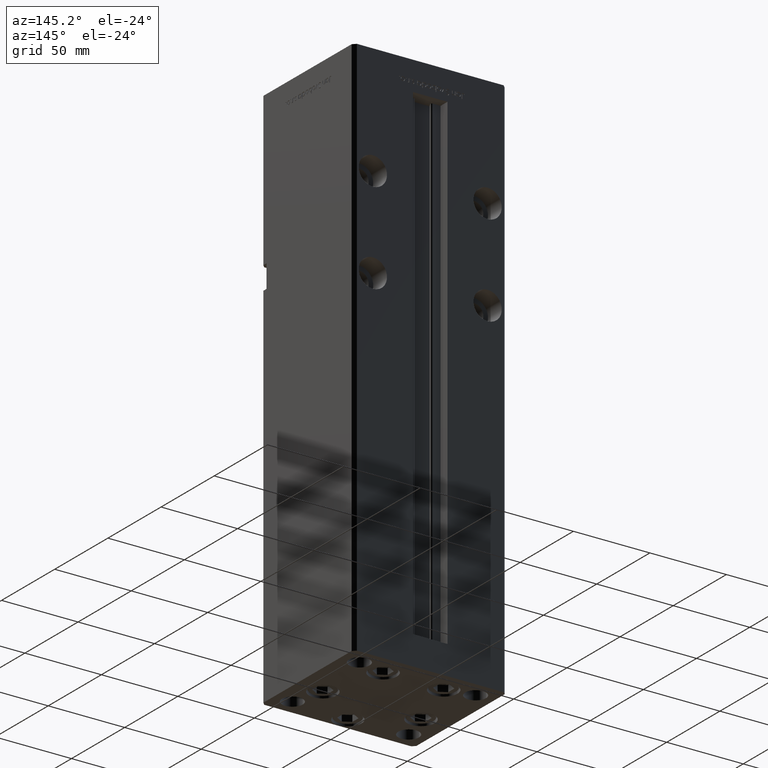
[diagram: clean part render]
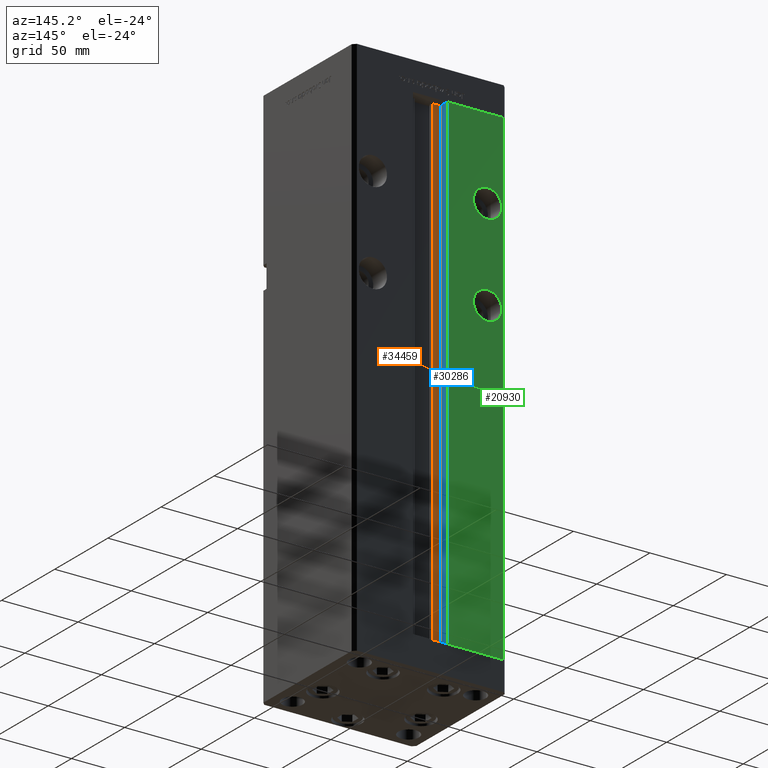
[diagram: same view with three faces highlighted in distinct colors, each labeled with its STEP entity id]
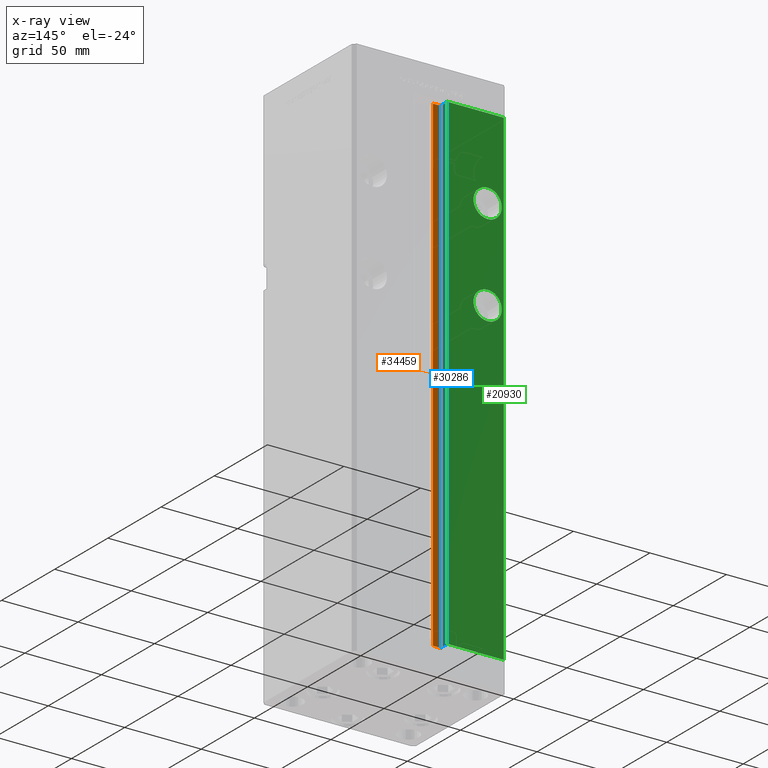
[diagram: x-ray of the same camera — body ghosted, the three highlighted faces saturated]
A machine part, auxiliary view with three faces highlighted in distinct colors.
The next image is the same camera in x-ray (body ghosted, the three faces saturated) — at least one of them is partly hidden behind the body in this view.
Their STEP definitions:

[orange] entity #34459 — the highlighted planar face has unit normal (0, -1, 0).
#988 = DIRECTION ( 'NONE',  ( -0.000000000000000000, -0.000000000000000000, 1.000000000000000000 ) ) ;
#2360 = AXIS2_PLACEMENT_3D ( 'NONE', #36469, #24122, #16056 ) ;
#6746 = VECTOR ( 'NONE', #988, 1000.000000000000000 ) ;
#6965 = VERTEX_POINT ( 'NONE', #47328 ) ;
#9589 = LINE ( 'NONE', #45594, #42840 ) ;
#10344 = VECTOR ( 'NONE', #24961, 1000.000000000000000 ) ;
#10435 = CARTESIAN_POINT ( 'NONE',  ( -11.24999999999999645, 37.00000000000000000, 0.000000000000000000 ) ) ;
#11173 = EDGE_CURVE ( 'NONE', #38768, #6965, #38071, .T. ) ;
#11989 = EDGE_CURVE ( 'NONE', #38768, #33548, #9589, .T. ) ;
#12359 = VERTEX_POINT ( 'NONE', #41955 ) ;
#13646 = LINE ( 'NONE', #25503, #10344 ) ;
#15590 = ORIENTED_EDGE ( 'NONE', *, *, #26084, .F. ) ;
#16056 = DIRECTION ( 'NONE',  ( 0.000000000000000000, 0.000000000000000000, -1.000000000000000000 ) ) ;
#17348 = CARTESIAN_POINT ( 'NONE',  ( -6.183333333333996151, 37.00000000000000000, 0.000000000000000000 ) ) ;
#21701 = CARTESIAN_POINT ( 'NONE',  ( -11.24999999999999645, 37.00000000000000000, 0.000000000000000000 ) ) ;
#21995 = VECTOR ( 'NONE', #22161, 1000.000000000000000 ) ;
#22161 = DIRECTION ( 'NONE',  ( -0.000000000000000000, -0.000000000000000000, 1.000000000000000000 ) ) ;
#24122 = DIRECTION ( 'NONE',  ( 0.000000000000000000, -1.000000000000000000, -0.000000000000000000 ) ) ;
#24961 = DIRECTION ( 'NONE',  ( -1.000000000000000000, 0.000000000000000000, 0.000000000000000000 ) ) ;
#25503 = CARTESIAN_POINT ( 'NONE',  ( 0.000000000000000000, 37.00000000000000000, 318.5000000000000000 ) ) ;
#26084 = EDGE_CURVE ( 'NONE', #33548, #12359, #42303, .T. ) ;
#30847 = ORIENTED_EDGE ( 'NONE', *, *, #46473, .F. ) ;
#31499 = EDGE_LOOP ( 'NONE', ( #15590, #37081, #49520, #30847 ) ) ;
#32997 = DIRECTION ( 'NONE',  ( 1.000000000000000000, -0.000000000000000000, -0.000000000000000000 ) ) ;
#33548 = VERTEX_POINT ( 'NONE', #37197 ) ;
#34459 = ADVANCED_FACE ( 'NONE', ( #48273 ), #45037, .F. ) ;
#36469 = CARTESIAN_POINT ( 'NONE',  ( -6.183333333333996151, 37.00000000000000000, 0.000000000000000000 ) ) ;
#37081 = ORIENTED_EDGE ( 'NONE', *, *, #11989, .F. ) ;
#37197 = CARTESIAN_POINT ( 'NONE',  ( -6.183333333333996151, 37.00000000000000000, 0.000000000000000000 ) ) ;
#38071 = LINE ( 'NONE', #21701, #6746 ) ;
#38768 = VERTEX_POINT ( 'NONE', #10435 ) ;
#41955 = CARTESIAN_POINT ( 'NONE',  ( -6.183333333333996151, 37.00000000000000000, 318.5000000000000000 ) ) ;
#42303 = LINE ( 'NONE', #17348, #21995 ) ;
#42840 = VECTOR ( 'NONE', #32997, 1000.000000000000000 ) ;
#45037 = PLANE ( 'NONE',  #2360 ) ;
#45594 = CARTESIAN_POINT ( 'NONE',  ( -6.183333333333996151, 37.00000000000000000, 0.000000000000000000 ) ) ;
#46473 = EDGE_CURVE ( 'NONE', #12359, #6965, #13646, .T. ) ;
#47328 = CARTESIAN_POINT ( 'NONE',  ( -11.24999999999999645, 37.00000000000000000, 318.5000000000000000 ) ) ;
#48273 = FACE_OUTER_BOUND ( 'NONE', #31499, .T. ) ;
#49520 = ORIENTED_EDGE ( 'NONE', *, *, #11173, .T. ) ;

[blue] entity #30286 — the highlighted planar face has unit normal (-1, 0, 0).
#988 = DIRECTION ( 'NONE',  ( -0.000000000000000000, -0.000000000000000000, 1.000000000000000000 ) ) ;
#1909 = CARTESIAN_POINT ( 'NONE',  ( -11.24999999999999645, 0.000000000000000000, 318.5000000000000000 ) ) ;
#4934 = CARTESIAN_POINT ( 'NONE',  ( -11.24999999999999645, 43.50000000000000000, 0.000000000000000000 ) ) ;
#5674 = AXIS2_PLACEMENT_3D ( 'NONE', #51905, #19394, #24688 ) ;
#5676 = LINE ( 'NONE', #1909, #26562 ) ;
#5757 = VECTOR ( 'NONE', #28690, 1000.000000000000000 ) ;
#6746 = VECTOR ( 'NONE', #988, 1000.000000000000000 ) ;
#6965 = VERTEX_POINT ( 'NONE', #47328 ) ;
#8261 = VERTEX_POINT ( 'NONE', #36824 ) ;
#9226 = LINE ( 'NONE', #4934, #9315 ) ;
#9315 = VECTOR ( 'NONE', #25642, 1000.000000000000000 ) ;
#10435 = CARTESIAN_POINT ( 'NONE',  ( -11.24999999999999645, 37.00000000000000000, 0.000000000000000000 ) ) ;
#11173 = EDGE_CURVE ( 'NONE', #38768, #6965, #38071, .T. ) ;
#12553 = LINE ( 'NONE', #28946, #5757 ) ;
#19145 = FACE_OUTER_BOUND ( 'NONE', #22877, .T. ) ;
#19394 = DIRECTION ( 'NONE',  ( -1.000000000000000000, 0.000000000000000000, 0.000000000000000000 ) ) ;
#21701 = CARTESIAN_POINT ( 'NONE',  ( -11.24999999999999645, 37.00000000000000000, 0.000000000000000000 ) ) ;
#22877 = EDGE_LOOP ( 'NONE', ( #36515, #35904, #32199, #42960 ) ) ;
#22879 = DIRECTION ( 'NONE',  ( 0.000000000000000000, 1.000000000000000000, 0.000000000000000000 ) ) ;
#24688 = DIRECTION ( 'NONE',  ( 0.000000000000000000, 0.000000000000000000, 1.000000000000000000 ) ) ;
#25642 = DIRECTION ( 'NONE',  ( -0.000000000000000000, -0.000000000000000000, 1.000000000000000000 ) ) ;
#26562 = VECTOR ( 'NONE', #22879, 1000.000000000000000 ) ;
#28041 = VERTEX_POINT ( 'NONE', #50351 ) ;
#28690 = DIRECTION ( 'NONE',  ( -0.000000000000000000, -1.000000000000000000, -0.000000000000000000 ) ) ;
#28744 = EDGE_CURVE ( 'NONE', #28041, #38768, #12553, .T. ) ;
#28946 = CARTESIAN_POINT ( 'NONE',  ( -11.24999999999999645, 37.00000000000000000, 0.000000000000000000 ) ) ;
#30286 = ADVANCED_FACE ( 'NONE', ( #19145 ), #35527, .F. ) ;
#32199 = ORIENTED_EDGE ( 'NONE', *, *, #37199, .T. ) ;
#35527 = PLANE ( 'NONE',  #5674 ) ;
#35904 = ORIENTED_EDGE ( 'NONE', *, *, #28744, .F. ) ;
#36515 = ORIENTED_EDGE ( 'NONE', *, *, #11173, .F. ) ;
#36824 = CARTESIAN_POINT ( 'NONE',  ( -11.24999999999999645, 43.50000000000000000, 318.5000000000000000 ) ) ;
#37199 = EDGE_CURVE ( 'NONE', #28041, #8261, #9226, .T. ) ;
#38071 = LINE ( 'NONE', #21701, #6746 ) ;
#38768 = VERTEX_POINT ( 'NONE', #10435 ) ;
#39861 = EDGE_CURVE ( 'NONE', #6965, #8261, #5676, .T. ) ;
#42960 = ORIENTED_EDGE ( 'NONE', *, *, #39861, .F. ) ;
#47328 = CARTESIAN_POINT ( 'NONE',  ( -11.24999999999999645, 37.00000000000000000, 318.5000000000000000 ) ) ;
#50351 = CARTESIAN_POINT ( 'NONE',  ( -11.24999999999999645, 43.50000000000000000, 0.000000000000000000 ) ) ;
#51905 = CARTESIAN_POINT ( 'NONE',  ( -11.24999999999999645, 37.00000000000000000, 0.000000000000000000 ) ) ;

[green] entity #20930 — the highlighted planar face has unit normal (0, -1, 0).
#2325 = ORIENTED_EDGE ( 'NONE', *, *, #31060, .T. ) ;
#2327 = EDGE_CURVE ( 'NONE', #47350, #11937, #14354, .T. ) ;
#3066 = DIRECTION ( 'NONE',  ( 0.000000000000000000, 1.000000000000000000, -0.000000000000000000 ) ) ;
#3146 = ORIENTED_EDGE ( 'NONE', *, *, #21930, .F. ) ;
#3171 = CARTESIAN_POINT ( 'NONE',  ( -37.50000000000000000, 43.50000000000000000, 274.7500000000000000 ) ) ;
#3570 = PLANE ( 'NONE',  #39626 ) ;
#3645 = DIRECTION ( 'NONE',  ( 0.000000000000000000, 0.000000000000000000, -1.000000000000000000 ) ) ;
#4340 = EDGE_CURVE ( 'NONE', #6167, #44528, #6287, .T. ) ;
#4934 = CARTESIAN_POINT ( 'NONE',  ( -11.24999999999999645, 43.50000000000000000, 0.000000000000000000 ) ) ;
#5648 = CARTESIAN_POINT ( 'NONE',  ( -37.50000000000000000, 43.50000000000000000, 205.5000000000000284 ) ) ;
#6167 = VERTEX_POINT ( 'NONE', #21588 ) ;
#6287 = LINE ( 'NONE', #31026, #7546 ) ;
#6442 = DIRECTION ( 'NONE',  ( 0.000000000000000000, 1.000000000000000000, 0.000000000000000000 ) ) ;
#7073 = CARTESIAN_POINT ( 'NONE',  ( -11.24999999999999645, 43.50000000000000000, 318.5000000000000000 ) ) ;
#7546 = VECTOR ( 'NONE', #38535, 1000.000000000000000 ) ;
#7941 = DIRECTION ( 'NONE',  ( 0.000000000000000000, 1.000000000000000000, -0.000000000000000000 ) ) ;
#8261 = VERTEX_POINT ( 'NONE', #36824 ) ;
#9031 = ORIENTED_EDGE ( 'NONE', *, *, #30867, .F. ) ;
#9135 = VECTOR ( 'NONE', #50992, 1000.000000000000000 ) ;
#9226 = LINE ( 'NONE', #4934, #9315 ) ;
#9315 = VECTOR ( 'NONE', #25642, 1000.000000000000000 ) ;
#10175 = VERTEX_POINT ( 'NONE', #21691 ) ;
#10282 = CARTESIAN_POINT ( 'NONE',  ( -11.24999999999999645, 43.50000000000000000, 318.5000000000000000 ) ) ;
#11473 = CIRCLE ( 'NONE', #26966, 9.250000000000008882 ) ;
#11893 = DIRECTION ( 'NONE',  ( 0.000000000000000000, -0.000000000000000000, -1.000000000000000000 ) ) ;
#11937 = VERTEX_POINT ( 'NONE', #3171 ) ;
#12688 = EDGE_LOOP ( 'NONE', ( #2325, #22758, #36608, #23995 ) ) ;
#12728 = LINE ( 'NONE', #10282, #22917 ) ;
#14354 = CIRCLE ( 'NONE', #44360, 9.249999999999980460 ) ;
#14563 = DIRECTION ( 'NONE',  ( 0.000000000000000000, 0.000000000000000000, 1.000000000000000000 ) ) ;
#15905 = EDGE_LOOP ( 'NONE', ( #9031, #25006 ) ) ;
#17526 = EDGE_LOOP ( 'NONE', ( #36459, #3146 ) ) ;
#18941 = EDGE_CURVE ( 'NONE', #10175, #49249, #22427, .T. ) ;
#19441 = FACE_BOUND ( 'NONE', #17526, .T. ) ;
#20930 = ADVANCED_FACE ( 'NONE', ( #47893, #19441, #32597 ), #3570, .F. ) ;
#21588 = CARTESIAN_POINT ( 'NONE',  ( -48.00000000000000711, 43.50000000000000000, 318.5000000000000000 ) ) ;
#21691 = CARTESIAN_POINT ( 'NONE',  ( -37.50000000000000000, 43.50000000000000000, 214.7500000000000284 ) ) ;
#21930 = EDGE_CURVE ( 'NONE', #49249, #10175, #11473, .T. ) ;
#21991 = CIRCLE ( 'NONE', #27130, 9.249999999999980460 ) ;
#22427 = CIRCLE ( 'NONE', #38704, 9.250000000000008882 ) ;
#22758 = ORIENTED_EDGE ( 'NONE', *, *, #37199, .F. ) ;
#22917 = VECTOR ( 'NONE', #34215, 1000.000000000000000 ) ;
#23995 = ORIENTED_EDGE ( 'NONE', *, *, #4340, .F. ) ;
#25006 = ORIENTED_EDGE ( 'NONE', *, *, #2327, .F. ) ;
#25642 = DIRECTION ( 'NONE',  ( -0.000000000000000000, -0.000000000000000000, 1.000000000000000000 ) ) ;
#26306 = CARTESIAN_POINT ( 'NONE',  ( -11.24999999999999645, 43.50000000000000000, 0.000000000000000000 ) ) ;
#26757 = EDGE_CURVE ( 'NONE', #28041, #44528, #47217, .T. ) ;
#26966 = AXIS2_PLACEMENT_3D ( 'NONE', #39273, #30963, #14563 ) ;
#27130 = AXIS2_PLACEMENT_3D ( 'NONE', #39883, #3066, #52769 ) ;
#28041 = VERTEX_POINT ( 'NONE', #50351 ) ;
#30867 = EDGE_CURVE ( 'NONE', #11937, #47350, #21991, .T. ) ;
#30963 = DIRECTION ( 'NONE',  ( 0.000000000000000000, 1.000000000000000000, 0.000000000000000000 ) ) ;
#31026 = CARTESIAN_POINT ( 'NONE',  ( -48.00000000000000711, 43.50000000000000000, 318.5000000000000000 ) ) ;
#31060 = EDGE_CURVE ( 'NONE', #6167, #8261, #12728, .T. ) ;
#31172 = DIRECTION ( 'NONE',  ( 0.000000000000000000, 0.000000000000000000, 1.000000000000000000 ) ) ;
#32597 = FACE_OUTER_BOUND ( 'NONE', #12688, .T. ) ;
#34215 = DIRECTION ( 'NONE',  ( 1.000000000000000000, 0.000000000000000000, 0.000000000000000000 ) ) ;
#35570 = DIRECTION ( 'NONE',  ( 0.000000000000000000, -1.000000000000000000, 0.000000000000000000 ) ) ;
#36459 = ORIENTED_EDGE ( 'NONE', *, *, #18941, .F. ) ;
#36608 = ORIENTED_EDGE ( 'NONE', *, *, #26757, .T. ) ;
#36824 = CARTESIAN_POINT ( 'NONE',  ( -11.24999999999999645, 43.50000000000000000, 318.5000000000000000 ) ) ;
#37199 = EDGE_CURVE ( 'NONE', #28041, #8261, #9226, .T. ) ;
#38535 = DIRECTION ( 'NONE',  ( -0.000000000000000000, -0.000000000000000000, -1.000000000000000000 ) ) ;
#38704 = AXIS2_PLACEMENT_3D ( 'NONE', #5648, #6442, #31172 ) ;
#39273 = CARTESIAN_POINT ( 'NONE',  ( -37.50000000000000000, 43.50000000000000000, 205.5000000000000284 ) ) ;
#39626 = AXIS2_PLACEMENT_3D ( 'NONE', #7073, #35570, #11893 ) ;
#39883 = CARTESIAN_POINT ( 'NONE',  ( -37.50000000000000000, 43.50000000000000000, 265.5000000000000000 ) ) ;
#44360 = AXIS2_PLACEMENT_3D ( 'NONE', #52289, #7941, #3645 ) ;
#44528 = VERTEX_POINT ( 'NONE', #49663 ) ;
#47217 = LINE ( 'NONE', #26306, #9135 ) ;
#47350 = VERTEX_POINT ( 'NONE', #47541 ) ;
#47541 = CARTESIAN_POINT ( 'NONE',  ( -37.50000000000000000, 43.50000000000000000, 256.2500000000000568 ) ) ;
#47893 = FACE_BOUND ( 'NONE', #15905, .T. ) ;
#49249 = VERTEX_POINT ( 'NONE', #52183 ) ;
#49663 = CARTESIAN_POINT ( 'NONE',  ( -48.00000000000000711, 43.50000000000000000, 0.000000000000000000 ) ) ;
#50351 = CARTESIAN_POINT ( 'NONE',  ( -11.24999999999999645, 43.50000000000000000, 0.000000000000000000 ) ) ;
#50992 = DIRECTION ( 'NONE',  ( -1.000000000000000000, 0.000000000000000000, 0.000000000000000000 ) ) ;
#52183 = CARTESIAN_POINT ( 'NONE',  ( -37.50000000000000000, 43.50000000000000000, 196.2500000000000000 ) ) ;
#52289 = CARTESIAN_POINT ( 'NONE',  ( -37.50000000000000000, 43.50000000000000000, 265.5000000000000000 ) ) ;
#52769 = DIRECTION ( 'NONE',  ( 0.000000000000000000, 0.000000000000000000, -1.000000000000000000 ) ) ;